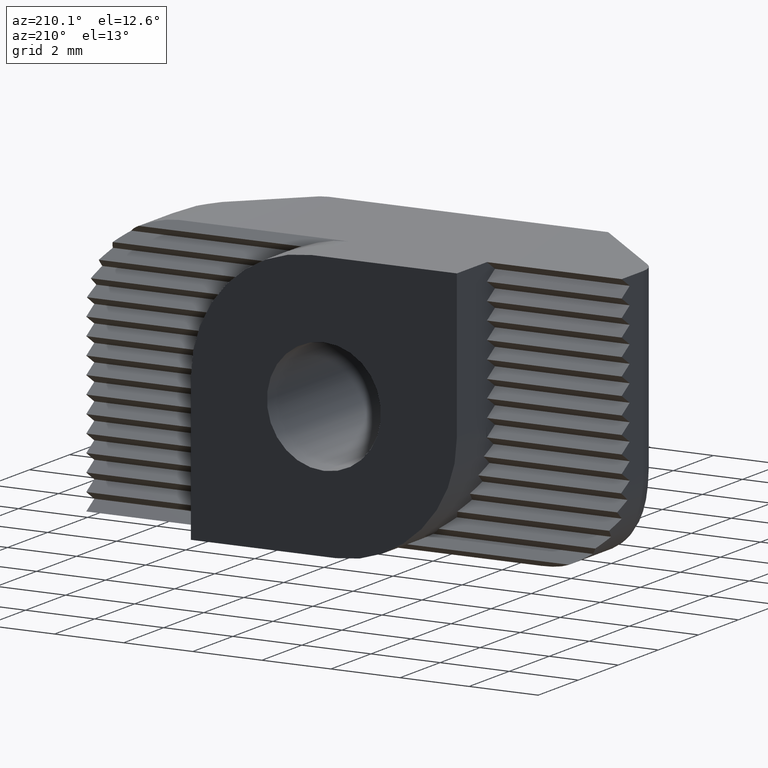
[diagram: clean part render]
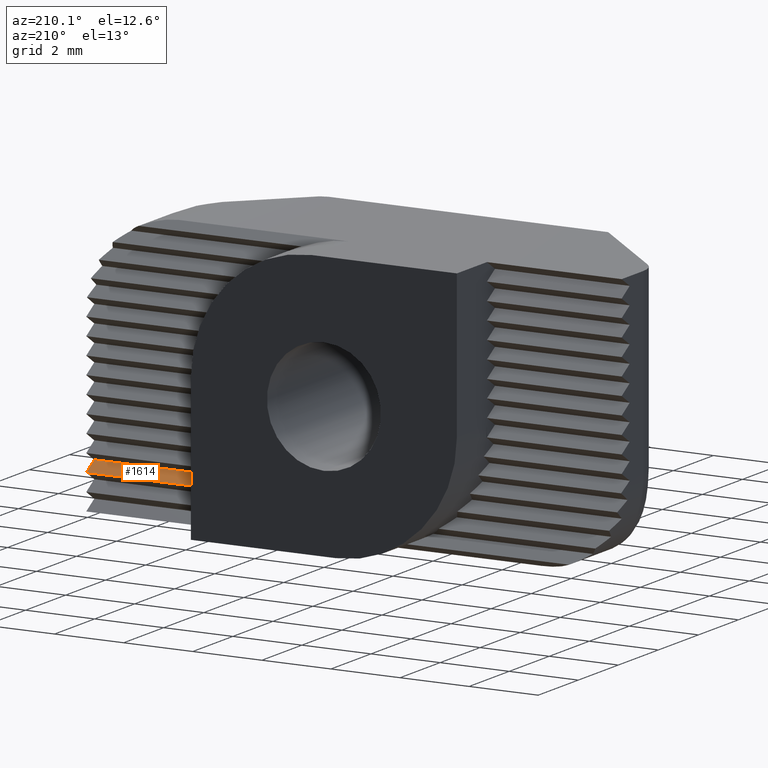
[diagram: same view with one face highlighted and labeled with its STEP entity id]
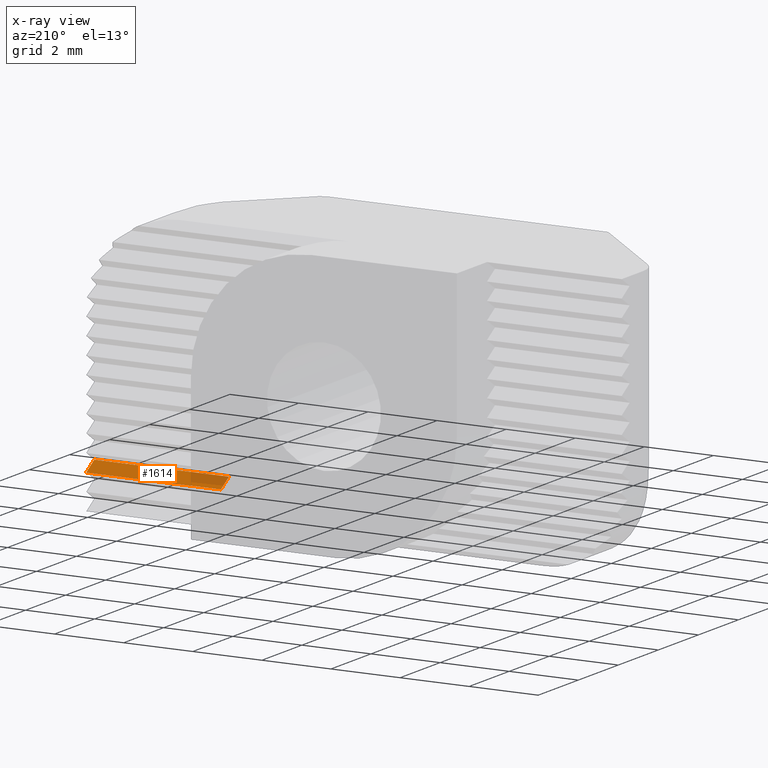
[diagram: x-ray of the same camera — body ghosted, the highlighted face saturated]
A machine part, auxiliary view. The second image highlights one B-rep face of the part: STEP entity #1614.
The next image is the same camera in x-ray: the body ghosted, the highlighted face saturated — about 19% of this face is hidden behind the body in this view.
In plain terms, the highlighted planar face has unit normal (0, -0.53, -0.848).
Its self-contained STEP definition (entity closure, byte-faithful):
#89=PLANE('',#1779);
#168=FACE_OUTER_BOUND('',#255,.T.);
#255=EDGE_LOOP('',(#1324,#1325,#1326,#1327));
#341=LINE('',#2413,#518);
#411=LINE('',#2619,#588);
#439=LINE('',#2728,#616);
#440=LINE('',#2730,#617);
#518=VECTOR('',#1899,1000.);
#588=VECTOR('',#2029,1000.);
#616=VECTOR('',#2129,1000.);
#617=VECTOR('',#2132,1000.);
#716=VERTEX_POINT('',#2410);
#717=VERTEX_POINT('',#2412);
#802=VERTEX_POINT('',#2616);
#803=VERTEX_POINT('',#2618);
#881=EDGE_CURVE('',#717,#716,#341,.T.);
#977=EDGE_CURVE('',#802,#803,#411,.T.);
#1033=EDGE_CURVE('',#803,#716,#439,.T.);
#1034=EDGE_CURVE('',#802,#717,#440,.T.);
#1324=ORIENTED_EDGE('',*,*,#881,.T.);
#1325=ORIENTED_EDGE('',*,*,#1033,.F.);
#1326=ORIENTED_EDGE('',*,*,#977,.F.);
#1327=ORIENTED_EDGE('',*,*,#1034,.T.);
#1614=ADVANCED_FACE('',(#168),#89,.F.);
#1779=AXIS2_PLACEMENT_3D('',#2729,#2130,#2131);
#1899=DIRECTION('',(0.,0.847998304005088,-0.52999894000318));
#2029=DIRECTION('',(0.,0.847998304005088,-0.52999894000318));
#2129=DIRECTION('',(1.,0.,0.));
#2130=DIRECTION('center_axis',(0.,-0.52999894000318,-0.847998304005088));
#2131=DIRECTION('ref_axis',(0.,0.847998304005088,-0.52999894000318));
#2132=DIRECTION('',(1.,0.,0.));
#2410=CARTESIAN_POINT('',(7.75,4.5,1.));
#2412=CARTESIAN_POINT('',(7.75,4.1,1.25));
#2413=CARTESIAN_POINT('',(7.75,4.5,1.));
#2616=CARTESIAN_POINT('',(3.85,4.1,1.25));
#2618=CARTESIAN_POINT('',(3.85,4.5,1.));
#2619=CARTESIAN_POINT('',(3.85,4.5,1.));
#2728=CARTESIAN_POINT('',(3.85,4.5,1.));
#2729=CARTESIAN_POINT('Origin',(3.85,4.5,1.));
#2730=CARTESIAN_POINT('',(3.85,4.1,1.25));